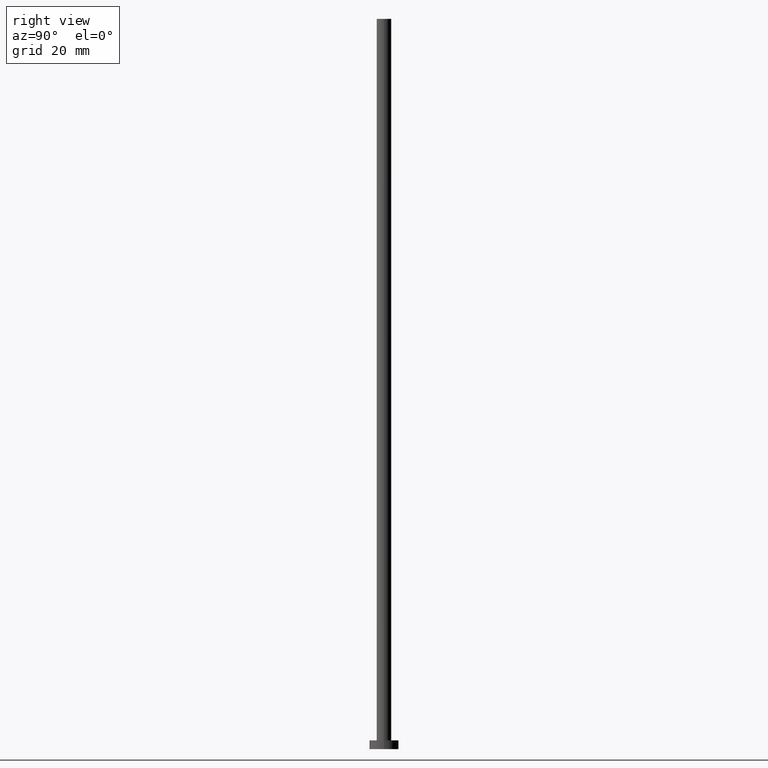
[diagram: clean part render]
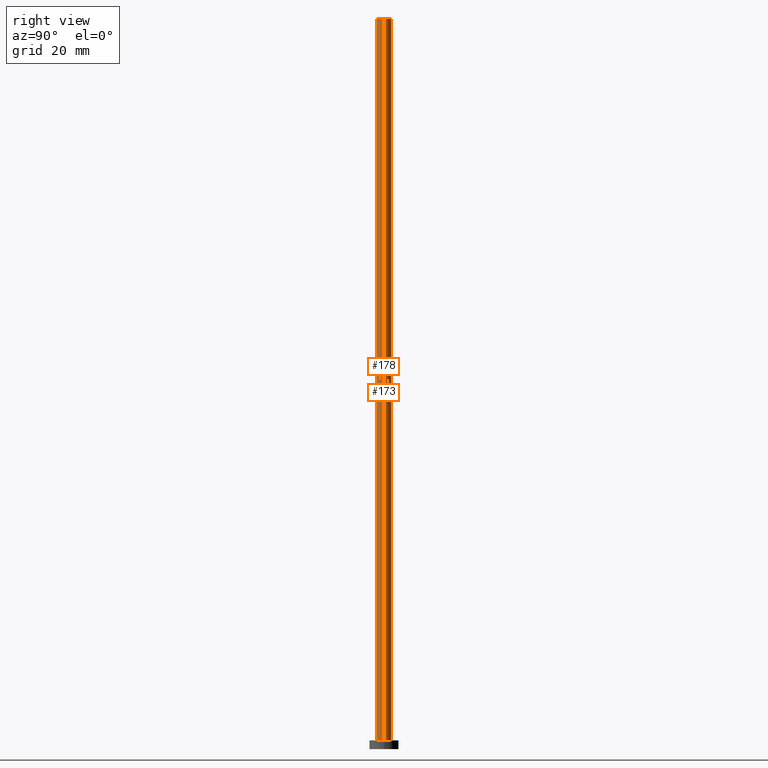
[diagram: same view with one multi-face feature highlighted, each face labeled with its STEP entity id]
A machine part, right view. The highlighted faces form ONE feature: a constant-radius fillet chain: 2 tangent blend faces with common blend radius 2.5 mm. The faces share edges in the B-rep.
Their STEP definitions:
[1] entity #178 (Cylinder):
#11 = EDGE_CURVE ( 'NONE', #242, #137, #198, .T. ) ;
#13 = CIRCLE ( 'NONE', #25, 2.500000000000000000 ) ;
#19 = AXIS2_PLACEMENT_3D ( 'NONE', #107, #247, #185 ) ;
#25 = AXIS2_PLACEMENT_3D ( 'NONE', #102, #177, #91 ) ;
#29 = CARTESIAN_POINT ( 'NONE',  ( 2.500000000000000000, 3.061616997868383141E-16, 250.0000000000000000 ) ) ;
#43 = VERTEX_POINT ( 'NONE', #64 ) ;
#59 = ORIENTED_EDGE ( 'NONE', *, *, #65, .F. ) ;
#64 = CARTESIAN_POINT ( 'NONE',  ( -2.500000000000000000, 0.000000000000000000, 250.0000000000000000 ) ) ;
#65 = EDGE_CURVE ( 'NONE', #43, #242, #13, .T. ) ;
#89 = CIRCLE ( 'NONE', #19, 2.500000000000000000 ) ;
#91 = DIRECTION ( 'NONE',  ( 1.000000000000000000, 0.000000000000000000, 0.000000000000000000 ) ) ;
#99 = CARTESIAN_POINT ( 'NONE',  ( -2.500000000000000000, 0.000000000000000000, 3.000000000000000000 ) ) ;
#102 = CARTESIAN_POINT ( 'NONE',  ( 0.000000000000000000, 0.000000000000000000, 250.0000000000000000 ) ) ;
#105 = CARTESIAN_POINT ( 'NONE',  ( 0.000000000000000000, 0.000000000000000000, 250.0000000000000000 ) ) ;
#107 = CARTESIAN_POINT ( 'NONE',  ( 0.000000000000000000, 0.000000000000000000, 3.000000000000000000 ) ) ;
#115 = EDGE_LOOP ( 'NONE', ( #119, #59, #118, #190 ) ) ;
#118 = ORIENTED_EDGE ( 'NONE', *, *, #217, .T. ) ;
#119 = ORIENTED_EDGE ( 'NONE', *, *, #11, .F. ) ;
#137 = VERTEX_POINT ( 'NONE', #180 ) ;
#141 = CYLINDRICAL_SURFACE ( 'NONE', #166, 2.500000000000000000 ) ;
#143 = FACE_OUTER_BOUND ( 'NONE', #115, .T. ) ;
#149 = LINE ( 'NONE', #251, #249 ) ;
#159 = DIRECTION ( 'NONE',  ( -0.000000000000000000, -0.000000000000000000, -1.000000000000000000 ) ) ;
#161 = DIRECTION ( 'NONE',  ( -0.000000000000000000, -0.000000000000000000, -1.000000000000000000 ) ) ;
#166 = AXIS2_PLACEMENT_3D ( 'NONE', #105, #184, #187 ) ;
#177 = DIRECTION ( 'NONE',  ( 0.000000000000000000, 0.000000000000000000, 1.000000000000000000 ) ) ;
#178 = ADVANCED_FACE ( 'NONE', ( #143 ), #141, .T. ) ;
#180 = CARTESIAN_POINT ( 'NONE',  ( 2.500000000000000000, 3.061616997868383141E-16, 3.000000000000000000 ) ) ;
#184 = DIRECTION ( 'NONE',  ( -0.000000000000000000, -0.000000000000000000, -1.000000000000000000 ) ) ;
#185 = DIRECTION ( 'NONE',  ( 1.000000000000000000, 0.000000000000000000, 0.000000000000000000 ) ) ;
#187 = DIRECTION ( 'NONE',  ( -1.000000000000000000, 0.000000000000000000, 0.000000000000000000 ) ) ;
#190 = ORIENTED_EDGE ( 'NONE', *, *, #191, .T. ) ;
#191 = EDGE_CURVE ( 'NONE', #212, #137, #89, .T. ) ;
#198 = LINE ( 'NONE', #29, #254 ) ;
#212 = VERTEX_POINT ( 'NONE', #99 ) ;
#217 = EDGE_CURVE ( 'NONE', #43, #212, #149, .T. ) ;
#242 = VERTEX_POINT ( 'NONE', #252 ) ;
#247 = DIRECTION ( 'NONE',  ( 0.000000000000000000, 0.000000000000000000, 1.000000000000000000 ) ) ;
#249 = VECTOR ( 'NONE', #161, 1000.000000000000000 ) ;
#251 = CARTESIAN_POINT ( 'NONE',  ( -2.500000000000000000, 0.000000000000000000, 250.0000000000000000 ) ) ;
#252 = CARTESIAN_POINT ( 'NONE',  ( 2.500000000000000000, 3.061616997868383141E-16, 250.0000000000000000 ) ) ;
#254 = VECTOR ( 'NONE', #159, 1000.000000000000000 ) ;
[2] entity #173 (Cylinder):
#6 = EDGE_LOOP ( 'NONE', ( #172, #156, #153, #23 ) ) ;
#11 = EDGE_CURVE ( 'NONE', #242, #137, #198, .T. ) ;
#21 = AXIS2_PLACEMENT_3D ( 'NONE', #126, #77, #110 ) ;
#23 = ORIENTED_EDGE ( 'NONE', *, *, #217, .F. ) ;
#28 = DIRECTION ( 'NONE',  ( 0.000000000000000000, 0.000000000000000000, 1.000000000000000000 ) ) ;
#29 = CARTESIAN_POINT ( 'NONE',  ( 2.500000000000000000, 3.061616997868383141E-16, 250.0000000000000000 ) ) ;
#33 = CARTESIAN_POINT ( 'NONE',  ( 0.000000000000000000, 0.000000000000000000, 250.0000000000000000 ) ) ;
#41 = AXIS2_PLACEMENT_3D ( 'NONE', #33, #206, #202 ) ;
#43 = VERTEX_POINT ( 'NONE', #64 ) ;
#64 = CARTESIAN_POINT ( 'NONE',  ( -2.500000000000000000, 0.000000000000000000, 250.0000000000000000 ) ) ;
#77 = DIRECTION ( 'NONE',  ( 0.000000000000000000, 0.000000000000000000, 1.000000000000000000 ) ) ;
#81 = CIRCLE ( 'NONE', #113, 2.500000000000000000 ) ;
#97 = DIRECTION ( 'NONE',  ( 1.000000000000000000, 0.000000000000000000, 0.000000000000000000 ) ) ;
#99 = CARTESIAN_POINT ( 'NONE',  ( -2.500000000000000000, 0.000000000000000000, 3.000000000000000000 ) ) ;
#110 = DIRECTION ( 'NONE',  ( 1.000000000000000000, 0.000000000000000000, 0.000000000000000000 ) ) ;
#113 = AXIS2_PLACEMENT_3D ( 'NONE', #174, #28, #97 ) ;
#126 = CARTESIAN_POINT ( 'NONE',  ( 0.000000000000000000, 0.000000000000000000, 3.000000000000000000 ) ) ;
#128 = FACE_OUTER_BOUND ( 'NONE', #6, .T. ) ;
#137 = VERTEX_POINT ( 'NONE', #180 ) ;
#138 = EDGE_CURVE ( 'NONE', #137, #212, #151, .T. ) ;
#149 = LINE ( 'NONE', #251, #249 ) ;
#151 = CIRCLE ( 'NONE', #21, 2.500000000000000000 ) ;
#153 = ORIENTED_EDGE ( 'NONE', *, *, #138, .T. ) ;
#156 = ORIENTED_EDGE ( 'NONE', *, *, #11, .T. ) ;
#159 = DIRECTION ( 'NONE',  ( -0.000000000000000000, -0.000000000000000000, -1.000000000000000000 ) ) ;
#161 = DIRECTION ( 'NONE',  ( -0.000000000000000000, -0.000000000000000000, -1.000000000000000000 ) ) ;
#172 = ORIENTED_EDGE ( 'NONE', *, *, #219, .F. ) ;
#173 = ADVANCED_FACE ( 'NONE', ( #128 ), #204, .T. ) ;
#174 = CARTESIAN_POINT ( 'NONE',  ( 0.000000000000000000, 0.000000000000000000, 250.0000000000000000 ) ) ;
#180 = CARTESIAN_POINT ( 'NONE',  ( 2.500000000000000000, 3.061616997868383141E-16, 3.000000000000000000 ) ) ;
#198 = LINE ( 'NONE', #29, #254 ) ;
#202 = DIRECTION ( 'NONE',  ( -1.000000000000000000, 0.000000000000000000, 0.000000000000000000 ) ) ;
#204 = CYLINDRICAL_SURFACE ( 'NONE', #41, 2.500000000000000000 ) ;
#206 = DIRECTION ( 'NONE',  ( -0.000000000000000000, -0.000000000000000000, -1.000000000000000000 ) ) ;
#212 = VERTEX_POINT ( 'NONE', #99 ) ;
#217 = EDGE_CURVE ( 'NONE', #43, #212, #149, .T. ) ;
#219 = EDGE_CURVE ( 'NONE', #242, #43, #81, .T. ) ;
#242 = VERTEX_POINT ( 'NONE', #252 ) ;
#249 = VECTOR ( 'NONE', #161, 1000.000000000000000 ) ;
#251 = CARTESIAN_POINT ( 'NONE',  ( -2.500000000000000000, 0.000000000000000000, 250.0000000000000000 ) ) ;
#252 = CARTESIAN_POINT ( 'NONE',  ( 2.500000000000000000, 3.061616997868383141E-16, 250.0000000000000000 ) ) ;
#254 = VECTOR ( 'NONE', #159, 1000.000000000000000 ) ;